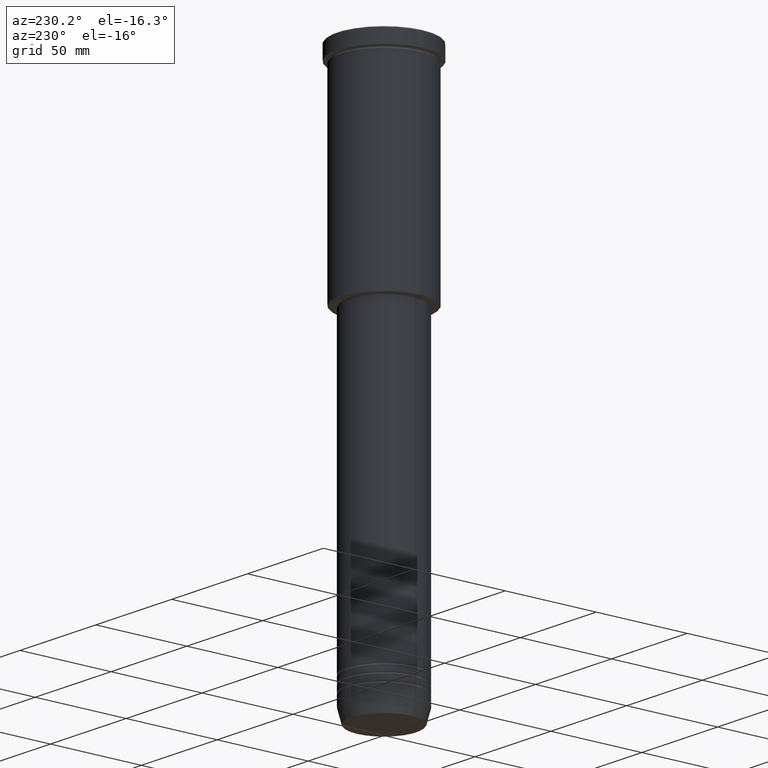
[diagram: clean part render]
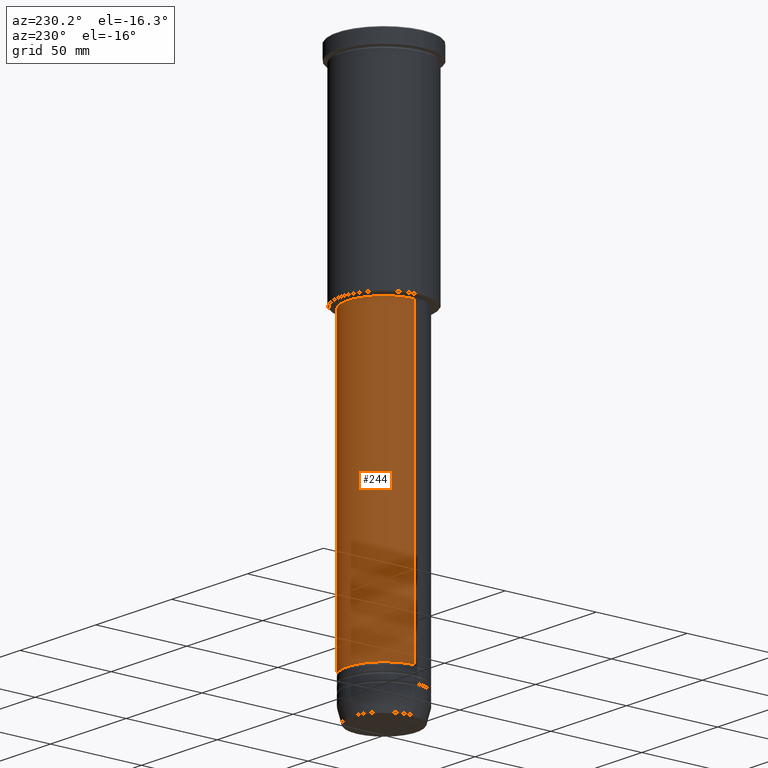
[diagram: same view with one face highlighted and labeled with its STEP entity id]
A machine part, auxiliary view. The second image highlights one B-rep face of the part: STEP entity #244.
In plain terms, the highlighted cylindrical surface (partial cylindrical patch) has radius 20 mm, axis along (-0, -0, 1).
Its self-contained STEP definition (entity closure, byte-faithful):
#35 = DIRECTION ( 'NONE',  ( -0.000000000000000000, -0.000000000000000000, 1.000000000000000000 ) ) ;
#54 = DIRECTION ( 'NONE',  ( 1.000000000000000000, 0.000000000000000000, 0.000000000000000000 ) ) ;
#60 = CYLINDRICAL_SURFACE ( 'NONE', #188, 20.00000000000000355 ) ;
#61 = EDGE_CURVE ( 'NONE', #1033, #1051, #1013, .T. ) ;
#104 = DIRECTION ( 'NONE',  ( 1.000000000000000000, 0.000000000000000000, 0.000000000000000000 ) ) ;
#184 = DIRECTION ( 'NONE',  ( -0.000000000000000000, -0.000000000000000000, 1.000000000000000000 ) ) ;
#185 = EDGE_CURVE ( 'NONE', #633, #435, #243, .T. ) ;
#188 = AXIS2_PLACEMENT_3D ( 'NONE', #795, #618, #54 ) ;
#243 = LINE ( 'NONE', #515, #532 ) ;
#244 = ADVANCED_FACE ( 'NONE', ( #1077 ), #60, .T. ) ;
#257 = CARTESIAN_POINT ( 'NONE',  ( 20.00000000000000355, 0.000000000000000000, -117.0000000000000000 ) ) ;
#296 = CARTESIAN_POINT ( 'NONE',  ( 0.000000000000000000, 0.000000000000000000, -277.9999999999999432 ) ) ;
#346 = VECTOR ( 'NONE', #184, 1000.000000000000000 ) ;
#361 = CARTESIAN_POINT ( 'NONE',  ( -20.00000000000000355, 2.449293598294706907E-15, 0.000000000000000000 ) ) ;
#430 = DIRECTION ( 'NONE',  ( -0.000000000000000000, -0.000000000000000000, 1.000000000000000000 ) ) ;
#435 = VERTEX_POINT ( 'NONE', #257 ) ;
#496 = ORIENTED_EDGE ( 'NONE', *, *, #839, .F. ) ;
#510 = CARTESIAN_POINT ( 'NONE',  ( 20.00000000000000355, 0.000000000000000000, -277.9999999999999432 ) ) ;
#515 = CARTESIAN_POINT ( 'NONE',  ( 20.00000000000000355, 0.000000000000000000, 0.000000000000000000 ) ) ;
#522 = EDGE_LOOP ( 'NONE', ( #1123, #732, #496, #866 ) ) ;
#532 = VECTOR ( 'NONE', #430, 1000.000000000000000 ) ;
#576 = CARTESIAN_POINT ( 'NONE',  ( -20.00000000000000355, 2.449293598294706907E-15, -117.0000000000000000 ) ) ;
#599 = CARTESIAN_POINT ( 'NONE',  ( -20.00000000000000355, 2.449293598294706907E-15, -277.9999999999999432 ) ) ;
#618 = DIRECTION ( 'NONE',  ( -0.000000000000000000, -0.000000000000000000, 1.000000000000000000 ) ) ;
#619 = AXIS2_PLACEMENT_3D ( 'NONE', #747, #667, #104 ) ;
#633 = VERTEX_POINT ( 'NONE', #510 ) ;
#667 = DIRECTION ( 'NONE',  ( -0.000000000000000000, -0.000000000000000000, 1.000000000000000000 ) ) ;
#687 = CIRCLE ( 'NONE', #1065, 20.00000000000000355 ) ;
#732 = ORIENTED_EDGE ( 'NONE', *, *, #61, .T. ) ;
#747 = CARTESIAN_POINT ( 'NONE',  ( 0.000000000000000000, 0.000000000000000000, -117.0000000000000000 ) ) ;
#795 = CARTESIAN_POINT ( 'NONE',  ( 0.000000000000000000, 0.000000000000000000, 0.000000000000000000 ) ) ;
#839 = EDGE_CURVE ( 'NONE', #435, #1051, #1125, .T. ) ;
#861 = DIRECTION ( 'NONE',  ( 1.000000000000000000, 0.000000000000000000, 0.000000000000000000 ) ) ;
#866 = ORIENTED_EDGE ( 'NONE', *, *, #185, .F. ) ;
#1013 = LINE ( 'NONE', #361, #346 ) ;
#1033 = VERTEX_POINT ( 'NONE', #599 ) ;
#1051 = VERTEX_POINT ( 'NONE', #576 ) ;
#1065 = AXIS2_PLACEMENT_3D ( 'NONE', #296, #35, #861 ) ;
#1077 = FACE_OUTER_BOUND ( 'NONE', #522, .T. ) ;
#1086 = EDGE_CURVE ( 'NONE', #633, #1033, #687, .T. ) ;
#1123 = ORIENTED_EDGE ( 'NONE', *, *, #1086, .T. ) ;
#1125 = CIRCLE ( 'NONE', #619, 20.00000000000000355 ) ;